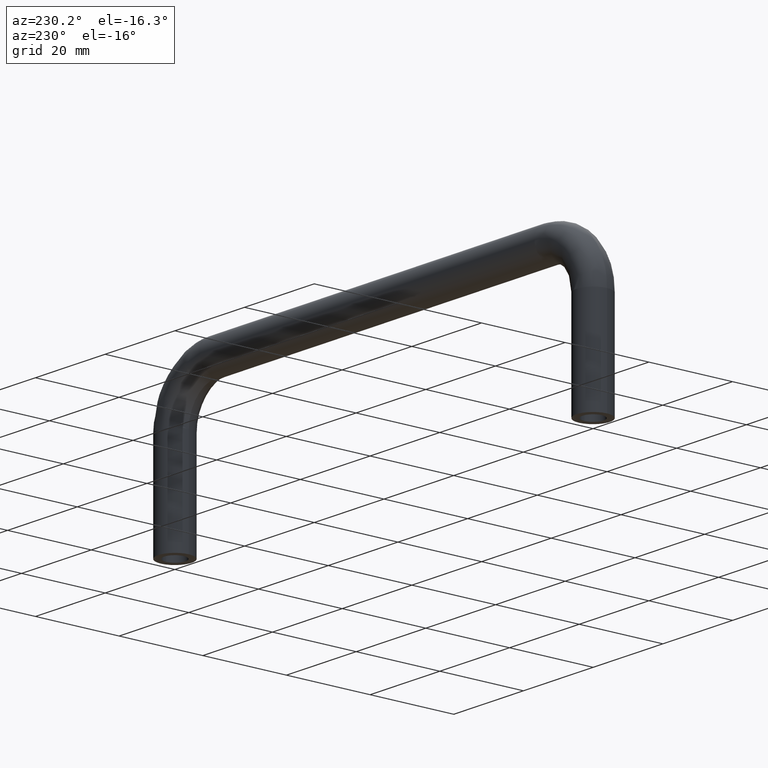
[diagram: clean part render]
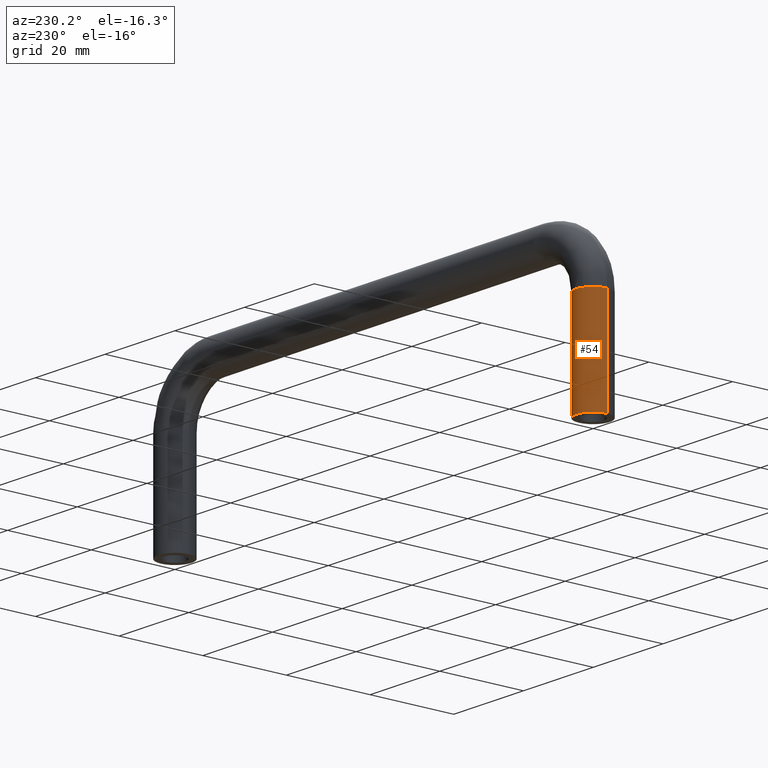
[diagram: same view with one face highlighted and labeled with its STEP entity id]
A machine part, auxiliary view. The second image highlights one B-rep face of the part: STEP entity #54.
In plain terms, the highlighted cylindrical surface (edge-blend (fillet) strip) has radius 4 mm, axis along (-0, -0, 1).
Its self-contained STEP definition (entity closure, byte-faithful):
#54=ADVANCED_FACE('',(#201),#200,.T.);
#200=CYLINDRICAL_SURFACE('',#467,4.00000000000E+00);
#201=FACE_OUTER_BOUND('',#468,.T.);
#464=CARTESIAN_POINT('',(-5.99999999995E+01,0.00000000000E+00,-2.00000000000E+01));
#465=DIRECTION('',(-1.22464679914E-16,-0.00000000000E+00,1.00000000000E+00));
#466=DIRECTION('',(1.00000000000E+00,-1.22464679915E-16,1.22464679914E-16));
#467=AXIS2_PLACEMENT_3D('',#464,#465,#466);
#468=EDGE_LOOP('',(#536,#537,#538,#539));
#536=ORIENTED_EDGE('',*,*,#569,.T.);
#537=ORIENTED_EDGE('',*,*,#582,.F.);
#538=ORIENTED_EDGE('',*,*,#570,.T.);
#539=ORIENTED_EDGE('',*,*,#583,.T.);
#569=EDGE_CURVE('',#669,#668,#702,.T.);
#570=EDGE_CURVE('',#708,#709,#710,.T.);
#582=EDGE_CURVE('',#708,#668,#786,.T.);
#583=EDGE_CURVE('',#709,#669,#792,.T.);
#668=VERTEX_POINT('',#871);
#669=VERTEX_POINT('',#872);
#702=CIRCLE('',#901,4.00000000000E+00);
#708=VERTEX_POINT('',#902);
#709=VERTEX_POINT('',#903);
#710=CIRCLE('',#907,4.00000000000E+00);
#786=(BOUNDED_CURVE() B_SPLINE_CURVE(1,(#944,#945),.UNSPECIFIED.,.F.,.F.) B_SPLINE_CURVE_WITH_KNOTS((2,2),(8.33333328360E-02,9.16666665505E-01),.UNSPECIFIED.) CURVE() GEOMETRIC_REPRESENTATION_ITEM() RATIONAL_B_SPLINE_CURVE((1.00000000000E+00,1.00000000000E+00)) REPRESENTATION_ITEM('') );
#792=(BOUNDED_CURVE() B_SPLINE_CURVE(1,(#946,#947),.UNSPECIFIED.,.F.,.F.) B_SPLINE_CURVE_WITH_KNOTS((2,2),(8.33333333333E-02,9.16666666667E-01),.UNSPECIFIED.) CURVE() GEOMETRIC_REPRESENTATION_ITEM() RATIONAL_B_SPLINE_CURVE((7.50000000000E-01,7.50000000000E-01)) REPRESENTATION_ITEM('') );
#871=CARTESIAN_POINT('',(-5.59999999995E+01,4.44089209850E-16,-8.00000000000E+00));
#872=CARTESIAN_POINT('',(-6.39999999995E+01,0.00000000000E+00,-8.00000000000E+00));
#898=CARTESIAN_POINT('',(-5.99999999995E+01,0.00000000000E+00,-8.00000000000E+00));
#899=DIRECTION('',(9.17343993978E-112,-2.73691106313E-48,-1.00000000000E+00));
#900=DIRECTION('',(1.00000000000E+00,3.35174937299E-64,-0.00000000000E+00));
#901=AXIS2_PLACEMENT_3D('',#898,#899,#900);
#902=CARTESIAN_POINT('',(-5.59999999994E+01,8.88178419700E-16,-3.20000000000E+01));
#903=CARTESIAN_POINT('',(-6.39999999994E+01,-2.50306141554E-16,-3.20000000000E+01));
#904=CARTESIAN_POINT('',(-5.99999999994E+01,0.00000000000E+00,-3.20000000000E+01));
#905=DIRECTION('',(-4.19303811868E-48,2.26605178906E-32,1.00000000000E+00));
#906=DIRECTION('',(-1.00000000000E+00,-1.85037170771E-16,-0.00000000000E+00));
#907=AXIS2_PLACEMENT_3D('',#904,#905,#906);
#944=CARTESIAN_POINT('',(-5.59999999995E+01,-4.89858719659E-16,-3.20000000143E+01));
#945=CARTESIAN_POINT('',(-5.59999999995E+01,-4.89858719659E-16,-8.00000003347E+00));
#946=CARTESIAN_POINT('',(-6.39999999995E+01,4.44089209850E-16,-3.20000000000E+01));
#947=CARTESIAN_POINT('',(-6.39999999995E+01,4.44089209850E-16,-8.00000000000E+00));